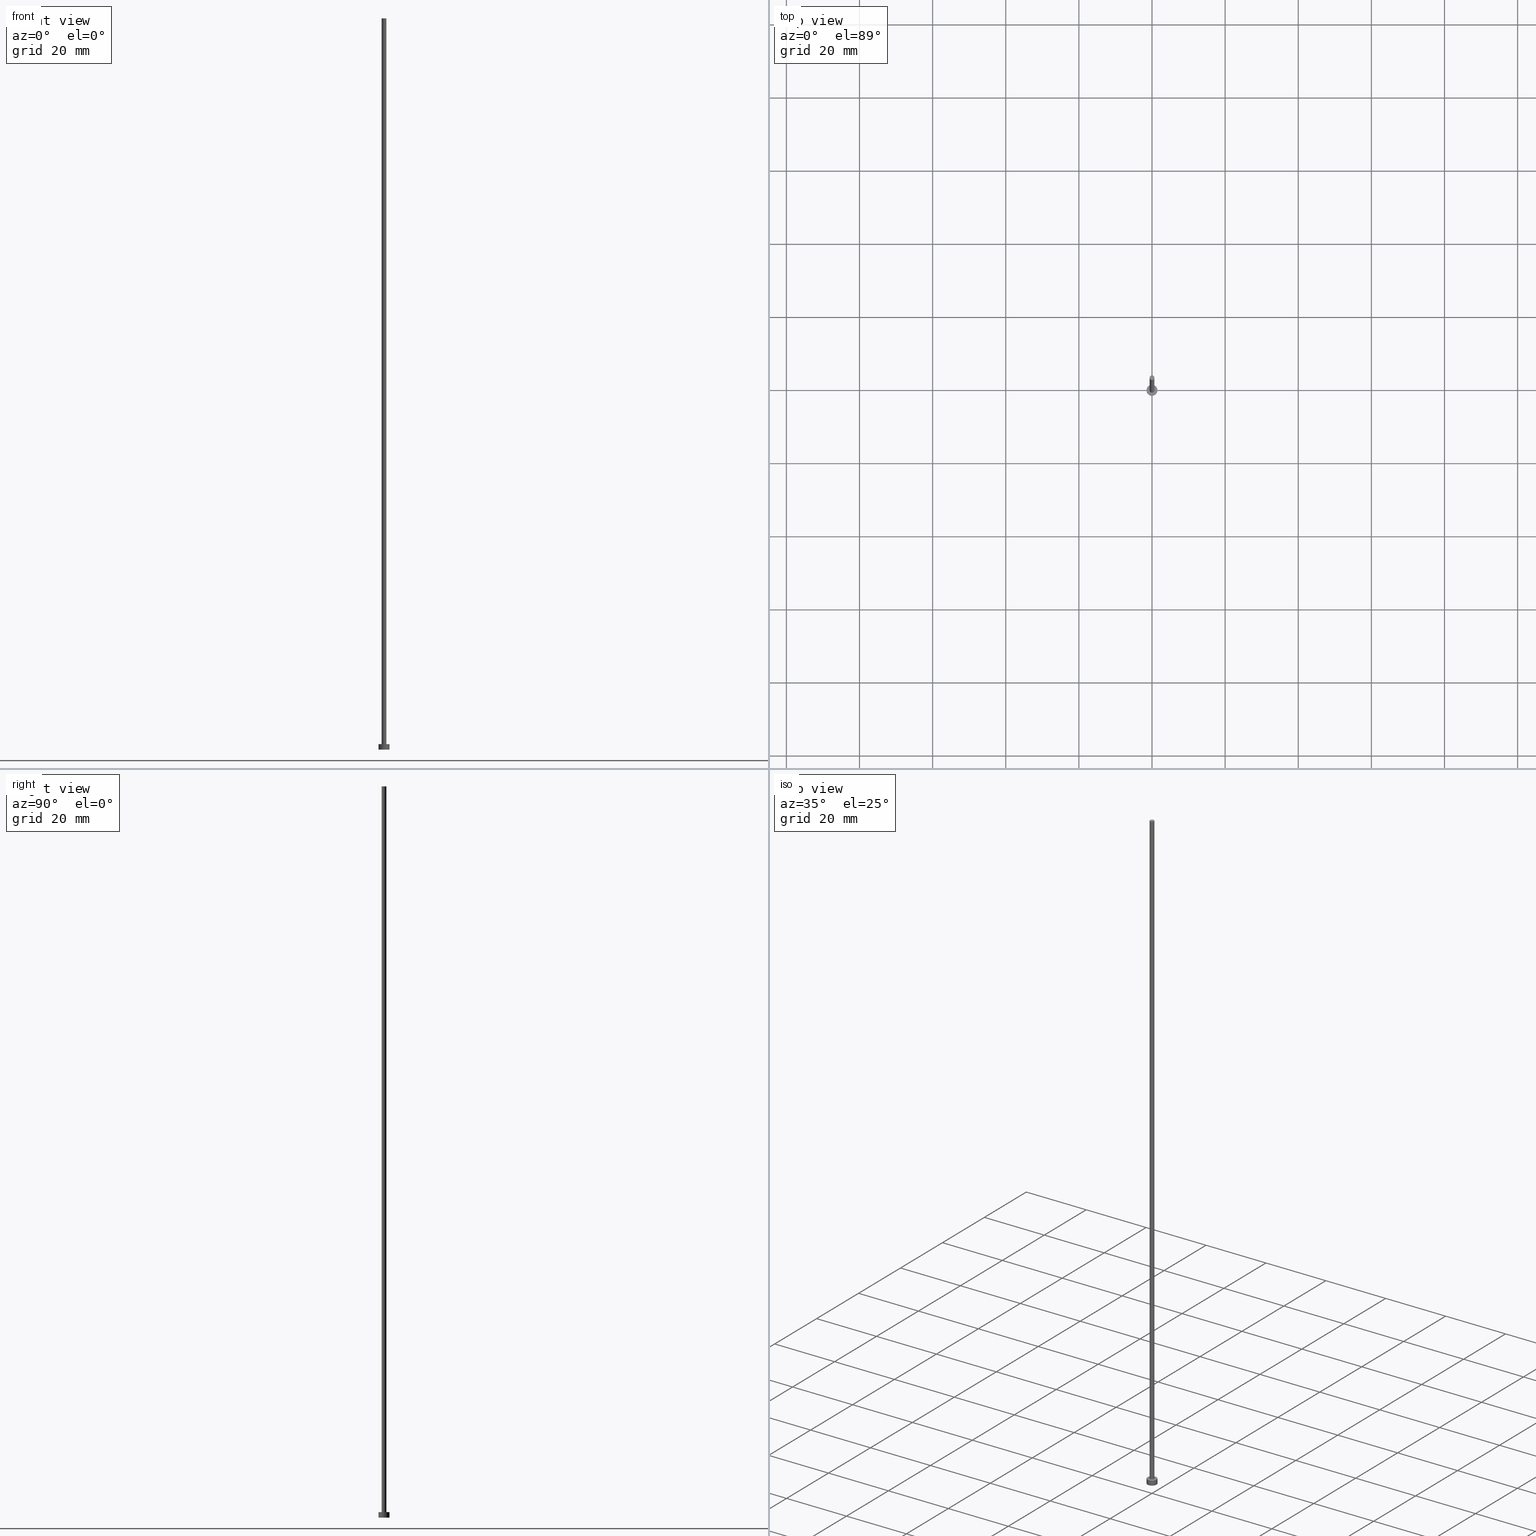
[diagram: canonical four-view strip — front | top / right | iso, engineering-drawing reading convention]
A machine part, canonical four-view strip (front | top / right | iso — engineering-drawing reading convention). The complete STEP part file that produces these views, byte-faithful:
ISO-10303-21;
HEADER;
FILE_DESCRIPTION (( 'STEP AP203' ),
    '1' );
FILE_NAME ('1990.STEP',
    '2026-02-06T12:33:36',
    ( '' ),
    ( '' ),
    'SwSTEP 2.0',
    'SolidWorks 2019',
    '' );
FILE_SCHEMA (( 'CONFIG_CONTROL_DESIGN' ));
ENDSEC;

DATA;
#1 = CARTESIAN_POINT ( 'NONE',  ( 0.000000000000000000, 0.000000000000000000, 200.0000000000000000 ) ) ;
#2 = DATE_AND_TIME ( #178, #23 ) ;
#3 = AXIS2_PLACEMENT_3D ( 'NONE', #206, #78, #252 ) ;
#4 = CARTESIAN_POINT ( 'NONE',  ( 0.6500000000000000222, 7.960204194457795477E-17, 200.0000000000000000 ) ) ;
#5 = VERTEX_POINT ( 'NONE', #142 ) ;
#6 = EDGE_CURVE ( 'NONE', #91, #46, #242, .T. ) ;
#7 = CALENDAR_DATE ( 2026, 6, 2 ) ;
#8 = DIRECTION ( 'NONE',  ( -1.000000000000000000, 0.000000000000000000, 0.000000000000000000 ) ) ;
#9 = ORIENTED_EDGE ( 'NONE', *, *, #187, .F. ) ;
#10 = ORIENTED_EDGE ( 'NONE', *, *, #118, .F. ) ;
#11 = ADVANCED_FACE ( 'NONE', ( #128 ), #87, .T. ) ;
#12 = MANIFOLD_SOLID_BREP ( 'P�idat vysunut�m3', #139 ) ;
#13 = CYLINDRICAL_SURFACE ( 'NONE', #103, 1.500000000000000222 ) ;
#14 = CARTESIAN_POINT ( 'NONE',  ( -1.500000000000000222, 0.000000000000000000, 1.500000000000000000 ) ) ;
#15 = APPROVAL_STATUS ( 'not_yet_approved' ) ;
#16 = FACE_OUTER_BOUND ( 'NONE', #164, .T. ) ;
#17 = EDGE_LOOP ( 'NONE', ( #247, #224, #220, #204 ) ) ;
#18 = DATE_AND_TIME ( #234, #215 ) ;
#19 = CIRCLE ( 'NONE', #232, 0.6500000000000000222 ) ;
#20 = DIRECTION ( 'NONE',  ( 1.000000000000000000, 0.000000000000000000, 0.000000000000000000 ) ) ;
#21 = DIRECTION ( 'NONE',  ( 1.000000000000000000, 0.000000000000000000, 0.000000000000000000 ) ) ;
#22 = DATE_TIME_ROLE ( 'classification_date' ) ;
#23 = LOCAL_TIME ( 13, 33, 36.00000000000000000, #175 ) ;
#24 =( LENGTH_UNIT ( ) NAMED_UNIT ( * ) SI_UNIT ( .MILLI., .METRE. ) );
#25 = CARTESIAN_POINT ( 'NONE',  ( 0.000000000000000000, 0.000000000000000000, 200.0000000000000000 ) ) ;
#26 = CARTESIAN_POINT ( 'NONE',  ( -0.6500000000000000222, 0.000000000000000000, 1.500000000000000000 ) ) ;
#27 = VERTEX_POINT ( 'NONE', #161 ) ;
#28 = APPLICATION_CONTEXT ( 'configuration controlled 3d designs of mechanical parts and assemblies' ) ;
#29 = EDGE_LOOP ( 'NONE', ( #108, #157 ) ) ;
#30 = APPROVAL ( #15, 'NEUR�EN�' ) ;
#31 = CIRCLE ( 'NONE', #171, 1.500000000000000222 ) ;
#32 =( GEOMETRIC_REPRESENTATION_CONTEXT ( 3 ) GLOBAL_UNCERTAINTY_ASSIGNED_CONTEXT ( ( #96 ) ) GLOBAL_UNIT_ASSIGNED_CONTEXT ( ( #24, #240, #219 ) ) REPRESENTATION_CONTEXT ( 'NONE', 'WORKASPACE' ) );
#33 = PRODUCT ( '1990', '1990', '', ( #127 ) ) ;
#34 = DIRECTION ( 'NONE',  ( 0.000000000000000000, 0.000000000000000000, 1.000000000000000000 ) ) ;
#35 = AXIS2_PLACEMENT_3D ( 'NONE', #1, #230, #229 ) ;
#36 = APPROVAL_PERSON_ORGANIZATION ( #160, #57, #140 ) ;
#37 = CYLINDRICAL_SURFACE ( 'NONE', #177, 1.500000000000000222 ) ;
#38 = PERSON_AND_ORGANIZATION ( #192, #251 ) ;
#39 = COORDINATED_UNIVERSAL_TIME_OFFSET ( 1, 0, .AHEAD. ) ;
#40 = EDGE_CURVE ( 'NONE', #222, #5, #203, .T. ) ;
#41 = CARTESIAN_POINT ( 'NONE',  ( 1.500000000000000222, 1.836970198721030181E-16, 1.500000000000000000 ) ) ;
#42 = DIRECTION ( 'NONE',  ( 0.000000000000000000, 0.000000000000000000, 1.000000000000000000 ) ) ;
#43 = DIRECTION ( 'NONE',  ( 0.000000000000000000, 0.000000000000000000, 1.000000000000000000 ) ) ;
#44 = CIRCLE ( 'NONE', #143, 1.500000000000000222 ) ;
#45 = PLANE ( 'NONE',  #123 ) ;
#46 = VERTEX_POINT ( 'NONE', #212 ) ;
#47 = DIRECTION ( 'NONE',  ( 1.000000000000000000, 0.000000000000000000, 0.000000000000000000 ) ) ;
#48 = EDGE_LOOP ( 'NONE', ( #129, #66, #70, #246 ) ) ;
#49 = ADVANCED_BREP_SHAPE_REPRESENTATION ( '1990', ( #12, #249 ), #32 ) ;
#50 = ADVANCED_FACE ( 'NONE', ( #101, #237 ), #172, .T. ) ;
#51 = VERTEX_POINT ( 'NONE', #41 ) ;
#52 = ORIENTED_EDGE ( 'NONE', *, *, #152, .T. ) ;
#53 = EDGE_CURVE ( 'NONE', #222, #27, #213, .T. ) ;
#54 = DIRECTION ( 'NONE',  ( -0.000000000000000000, -0.000000000000000000, -1.000000000000000000 ) ) ;
#55 = AXIS2_PLACEMENT_3D ( 'NONE', #25, #107, #8 ) ;
#56 = CALENDAR_DATE ( 2026, 6, 2 ) ;
#57 = APPROVAL ( #197, 'NEUR�EN�' ) ;
#58 = CARTESIAN_POINT ( 'NONE',  ( 1.500000000000000222, 1.836970198721030181E-16, 1.500000000000000000 ) ) ;
#59 = DIRECTION ( 'NONE',  ( -0.000000000000000000, -0.000000000000000000, -1.000000000000000000 ) ) ;
#60 = SHAPE_DEFINITION_REPRESENTATION ( #167, #49 ) ;
#61 = DIRECTION ( 'NONE',  ( 0.000000000000000000, 0.000000000000000000, 1.000000000000000000 ) ) ;
#62 = CIRCLE ( 'NONE', #254, 0.6500000000000000222 ) ;
#63 = CC_DESIGN_SECURITY_CLASSIFICATION ( #89, ( #156 ) ) ;
#64 = LINE ( 'NONE', #65, #93 ) ;
#65 = CARTESIAN_POINT ( 'NONE',  ( -0.6500000000000000222, 0.000000000000000000, 200.0000000000000000 ) ) ;
#66 = ORIENTED_EDGE ( 'NONE', *, *, #40, .T. ) ;
#67 = VECTOR ( 'NONE', #59, 1000.000000000000000 ) ;
#68 = CARTESIAN_POINT ( 'NONE',  ( 0.000000000000000000, 0.000000000000000000, 0.000000000000000000 ) ) ;
#69 = ORIENTED_EDGE ( 'NONE', *, *, #6, .F. ) ;
#70 = ORIENTED_EDGE ( 'NONE', *, *, #218, .T. ) ;
#71 = ORIENTED_EDGE ( 'NONE', *, *, #187, .T. ) ;
#72 = LOCAL_TIME ( 13, 33, 36.00000000000000000, #194 ) ;
#73 = CARTESIAN_POINT ( 'NONE',  ( 0.000000000000000000, 0.000000000000000000, 1.500000000000000000 ) ) ;
#74 = CC_DESIGN_DATE_AND_TIME_ASSIGNMENT ( #18, #81, ( #185 ) ) ;
#75 = FACE_OUTER_BOUND ( 'NONE', #48, .T. ) ;
#76 = APPROVAL_PERSON_ORGANIZATION ( #38, #30, #77 ) ;
#77 = APPROVAL_ROLE ( '' ) ;
#78 = DIRECTION ( 'NONE',  ( 0.000000000000000000, 0.000000000000000000, 1.000000000000000000 ) ) ;
#79 = DIRECTION ( 'NONE',  ( -1.000000000000000000, 0.000000000000000000, 0.000000000000000000 ) ) ;
#80 = DATE_AND_TIME ( #7, #228 ) ;
#81 = DATE_TIME_ROLE ( 'creation_date' ) ;
#82 = EDGE_CURVE ( 'NONE', #27, #222, #62, .T. ) ;
#83 = DIRECTION ( 'NONE',  ( 0.000000000000000000, 0.000000000000000000, 1.000000000000000000 ) ) ;
#84 = PERSON_AND_ORGANIZATION ( #192, #251 ) ;
#85 = CC_DESIGN_DATE_AND_TIME_ASSIGNMENT ( #186, #22, ( #89 ) ) ;
#86 = PERSON_AND_ORGANIZATION ( #192, #251 ) ;
#87 = CYLINDRICAL_SURFACE ( 'NONE', #55, 0.6500000000000000222 ) ;
#88 = ADVANCED_FACE ( 'NONE', ( #75 ), #149, .T. ) ;
#89 = SECURITY_CLASSIFICATION ( '', '', #209 ) ;
#90 = ORIENTED_EDGE ( 'NONE', *, *, #147, .F. ) ;
#91 = VERTEX_POINT ( 'NONE', #14 ) ;
#92 = APPLICATION_CONTEXT ( 'configuration controlled 3d designs of mechanical parts and assemblies' ) ;
#93 = VECTOR ( 'NONE', #120, 1000.000000000000000 ) ;
#94 = DIRECTION ( 'NONE',  ( 0.000000000000000000, 0.000000000000000000, 1.000000000000000000 ) ) ;
#95 = ADVANCED_FACE ( 'NONE', ( #16 ), #37, .T. ) ;
#96 = UNCERTAINTY_MEASURE_WITH_UNIT (LENGTH_MEASURE( 1.000000000000000082E-05 ), #24, 'distance_accuracy_value', 'NONE');
#97 = CARTESIAN_POINT ( 'NONE',  ( 0.000000000000000000, 0.000000000000000000, 1.500000000000000000 ) ) ;
#98 = AXIS2_PLACEMENT_3D ( 'NONE', #112, #94, #184 ) ;
#99 = PERSON_AND_ORGANIZATION_ROLE ( 'design_supplier' ) ;
#100 = FACE_OUTER_BOUND ( 'NONE', #146, .T. ) ;
#101 = FACE_BOUND ( 'NONE', #29, .T. ) ;
#102 = DATE_AND_TIME ( #56, #226 ) ;
#103 = AXIS2_PLACEMENT_3D ( 'NONE', #73, #54, #233 ) ;
#104 = CARTESIAN_POINT ( 'NONE',  ( 0.000000000000000000, 0.000000000000000000, 1.500000000000000000 ) ) ;
#105 = CC_DESIGN_PERSON_AND_ORGANIZATION_ASSIGNMENT ( #136, #99, ( #156 ) ) ;
#106 = EDGE_CURVE ( 'NONE', #159, #46, #245, .T. ) ;
#107 = DIRECTION ( 'NONE',  ( -0.000000000000000000, -0.000000000000000000, -1.000000000000000000 ) ) ;
#108 = ORIENTED_EDGE ( 'NONE', *, *, #243, .F. ) ;
#109 = EDGE_LOOP ( 'NONE', ( #71, #205 ) ) ;
#110 = CARTESIAN_POINT ( 'NONE',  ( -1.500000000000000222, 0.000000000000000000, 1.500000000000000000 ) ) ;
#111 = CIRCLE ( 'NONE', #132, 1.500000000000000222 ) ;
#112 = CARTESIAN_POINT ( 'NONE',  ( 0.000000000000000000, 0.000000000000000000, 1.500000000000000000 ) ) ;
#113 = VECTOR ( 'NONE', #201, 1000.000000000000000 ) ;
#114 = CC_DESIGN_APPROVAL ( #30, ( #89 ) ) ;
#115 = APPROVAL_DATE_TIME ( #80, #57 ) ;
#116 = FACE_OUTER_BOUND ( 'NONE', #196, .T. ) ;
#117 = APPROVAL_DATE_TIME ( #102, #148 ) ;
#118 = EDGE_CURVE ( 'NONE', #51, #91, #44, .T. ) ;
#119 = CALENDAR_DATE ( 2026, 6, 2 ) ;
#120 = DIRECTION ( 'NONE',  ( -0.000000000000000000, -0.000000000000000000, -1.000000000000000000 ) ) ;
#121 = CC_DESIGN_PERSON_AND_ORGANIZATION_ASSIGNMENT ( #84, #211, ( #185 ) ) ;
#122 = PERSON_AND_ORGANIZATION_ROLE ( 'design_owner' ) ;
#123 = AXIS2_PLACEMENT_3D ( 'NONE', #125, #43, #199 ) ;
#124 = CC_DESIGN_APPROVAL ( #57, ( #185 ) ) ;
#125 = CARTESIAN_POINT ( 'NONE',  ( 0.000000000000000000, 0.000000000000000000, 0.000000000000000000 ) ) ;
#126 = ORIENTED_EDGE ( 'NONE', *, *, #53, .T. ) ;
#127 = MECHANICAL_CONTEXT ( 'NONE', #92, 'mechanical' ) ;
#128 = FACE_OUTER_BOUND ( 'NONE', #17, .T. ) ;
#129 = ORIENTED_EDGE ( 'NONE', *, *, #53, .F. ) ;
#130 = ORIENTED_EDGE ( 'NONE', *, *, #82, .T. ) ;
#131 = CC_DESIGN_PERSON_AND_ORGANIZATION_ASSIGNMENT ( #141, #189, ( #89 ) ) ;
#132 = AXIS2_PLACEMENT_3D ( 'NONE', #135, #210, #154 ) ;
#133 = DIRECTION ( 'NONE',  ( 0.000000000000000000, 0.000000000000000000, 1.000000000000000000 ) ) ;
#134 = VECTOR ( 'NONE', #174, 1000.000000000000000 ) ;
#135 = CARTESIAN_POINT ( 'NONE',  ( 0.000000000000000000, 0.000000000000000000, 1.500000000000000000 ) ) ;
#136 = PERSON_AND_ORGANIZATION ( #192, #251 ) ;
#137 = CARTESIAN_POINT ( 'NONE',  ( 1.500000000000000222, 1.836970198721030181E-16, 0.000000000000000000 ) ) ;
#138 = PLANE ( 'NONE',  #168 ) ;
#139 = CLOSED_SHELL ( 'NONE', ( #88, #95, #163, #50, #250, #11, #216 ) ) ;
#140 = APPROVAL_ROLE ( '' ) ;
#141 = PERSON_AND_ORGANIZATION ( #192, #251 ) ;
#142 = CARTESIAN_POINT ( 'NONE',  ( 0.6500000000000000222, 7.960204194457795477E-17, 1.500000000000000000 ) ) ;
#143 = AXIS2_PLACEMENT_3D ( 'NONE', #97, #34, #21 ) ;
#144 = DIRECTION ( 'NONE',  ( 0.000000000000000000, 0.000000000000000000, 1.000000000000000000 ) ) ;
#145 = ORIENTED_EDGE ( 'NONE', *, *, #106, .T. ) ;
#146 = EDGE_LOOP ( 'NONE', ( #130, #126 ) ) ;
#147 = EDGE_CURVE ( 'NONE', #46, #159, #31, .T. ) ;
#148 = APPROVAL ( #155, 'NEUR�EN�' ) ;
#149 = CYLINDRICAL_SURFACE ( 'NONE', #35, 0.6500000000000000222 ) ;
#150 = APPROVAL_ROLE ( '' ) ;
#151 = LINE ( 'NONE', #58, #67 ) ;
#152 = EDGE_CURVE ( 'NONE', #51, #159, #151, .T. ) ;
#153 = PERSON_AND_ORGANIZATION ( #192, #251 ) ;
#154 = DIRECTION ( 'NONE',  ( 1.000000000000000000, 0.000000000000000000, 0.000000000000000000 ) ) ;
#155 = APPROVAL_STATUS ( 'not_yet_approved' ) ;
#156 = PRODUCT_DEFINITION_FORMATION_WITH_SPECIFIED_SOURCE ( 'LIBOVOLN�', '', #33, .NOT_KNOWN. ) ;
#157 = ORIENTED_EDGE ( 'NONE', *, *, #218, .F. ) ;
#158 = APPLICATION_PROTOCOL_DEFINITION ( 'international standard', 'config_control_design', 1994, #92 ) ;
#159 = VERTEX_POINT ( 'NONE', #137 ) ;
#160 = PERSON_AND_ORGANIZATION ( #192, #251 ) ;
#161 = CARTESIAN_POINT ( 'NONE',  ( -0.6500000000000000222, 0.000000000000000000, 200.0000000000000000 ) ) ;
#162 = CARTESIAN_POINT ( 'NONE',  ( 0.6500000000000000222, 7.960204194457795477E-17, 200.0000000000000000 ) ) ;
#163 = ADVANCED_FACE ( 'NONE', ( #116 ), #13, .T. ) ;
#164 = EDGE_LOOP ( 'NONE', ( #10, #52, #145, #69 ) ) ;
#165 = CC_DESIGN_PERSON_AND_ORGANIZATION_ASSIGNMENT ( #86, #122, ( #33 ) ) ;
#166 = CIRCLE ( 'NONE', #198, 0.6500000000000000222 ) ;
#167 = PRODUCT_DEFINITION_SHAPE ( 'NONE', 'NONE',  #185 ) ;
#168 = AXIS2_PLACEMENT_3D ( 'NONE', #214, #42, #202 ) ;
#169 = CARTESIAN_POINT ( 'NONE',  ( 0.000000000000000000, 0.000000000000000000, 1.500000000000000000 ) ) ;
#170 = CC_DESIGN_PERSON_AND_ORGANIZATION_ASSIGNMENT ( #153, #231, ( #156 ) ) ;
#171 = AXIS2_PLACEMENT_3D ( 'NONE', #208, #61, #20 ) ;
#172 = PLANE ( 'NONE',  #98 ) ;
#173 = DIRECTION ( 'NONE',  ( 0.000000000000000000, 0.000000000000000000, 1.000000000000000000 ) ) ;
#174 = DIRECTION ( 'NONE',  ( -0.000000000000000000, -0.000000000000000000, -1.000000000000000000 ) ) ;
#175 = COORDINATED_UNIVERSAL_TIME_OFFSET ( 1, 0, .AHEAD. ) ;
#176 = DIRECTION ( 'NONE',  ( 1.000000000000000000, 0.000000000000000000, 0.000000000000000000 ) ) ;
#177 = AXIS2_PLACEMENT_3D ( 'NONE', #169, #255, #79 ) ;
#178 = CALENDAR_DATE ( 2026, 6, 2 ) ;
#179 = COORDINATED_UNIVERSAL_TIME_OFFSET ( 1, 0, .AHEAD. ) ;
#180 = EDGE_LOOP ( 'NONE', ( #90, #236 ) ) ;
#181 = ORIENTED_EDGE ( 'NONE', *, *, #147, .T. ) ;
#182 = ORIENTED_EDGE ( 'NONE', *, *, #6, .T. ) ;
#183 = CC_DESIGN_APPROVAL ( #148, ( #156 ) ) ;
#184 = DIRECTION ( 'NONE',  ( 1.000000000000000000, 0.000000000000000000, -0.000000000000000000 ) ) ;
#185 = PRODUCT_DEFINITION ( 'NEZN�M�', '', #156, #223 ) ;
#186 = DATE_AND_TIME ( #119, #72 ) ;
#187 = EDGE_CURVE ( 'NONE', #91, #51, #111, .T. ) ;
#188 = DIRECTION ( 'NONE',  ( 1.000000000000000000, 0.000000000000000000, 0.000000000000000000 ) ) ;
#189 = PERSON_AND_ORGANIZATION_ROLE ( 'classification_officer' ) ;
#190 = CARTESIAN_POINT ( 'NONE',  ( 0.000000000000000000, 0.000000000000000000, 200.0000000000000000 ) ) ;
#191 = APPROVAL_PERSON_ORGANIZATION ( #253, #148, #150 ) ;
#192 = PERSON ( 'NEUR�EN�', 'NEUR�EN�', 'NEUR�EN�', ('NEUR�EN�'), ('NEUR�EN�'), ('NEUR�EN�') ) ;
#193 = DIRECTION ( 'NONE',  ( 1.000000000000000000, 0.000000000000000000, 0.000000000000000000 ) ) ;
#194 = COORDINATED_UNIVERSAL_TIME_OFFSET ( 1, 0, .AHEAD. ) ;
#195 = FACE_OUTER_BOUND ( 'NONE', #180, .T. ) ;
#196 = EDGE_LOOP ( 'NONE', ( #248, #9, #182, #181 ) ) ;
#197 = APPROVAL_STATUS ( 'not_yet_approved' ) ;
#198 = AXIS2_PLACEMENT_3D ( 'NONE', #104, #144, #244 ) ;
#199 = DIRECTION ( 'NONE',  ( 1.000000000000000000, 0.000000000000000000, -0.000000000000000000 ) ) ;
#200 = PRODUCT_RELATED_PRODUCT_CATEGORY ( 'detail', '', ( #33 ) ) ;
#201 = DIRECTION ( 'NONE',  ( -0.000000000000000000, -0.000000000000000000, -1.000000000000000000 ) ) ;
#202 = DIRECTION ( 'NONE',  ( 1.000000000000000000, 0.000000000000000000, -0.000000000000000000 ) ) ;
#203 = LINE ( 'NONE', #162, #134 ) ;
#204 = ORIENTED_EDGE ( 'NONE', *, *, #243, .T. ) ;
#205 = ORIENTED_EDGE ( 'NONE', *, *, #118, .T. ) ;
#206 = CARTESIAN_POINT ( 'NONE',  ( 0.000000000000000000, 0.000000000000000000, 0.000000000000000000 ) ) ;
#207 = AXIS2_PLACEMENT_3D ( 'NONE', #190, #133, #193 ) ;
#208 = CARTESIAN_POINT ( 'NONE',  ( 0.000000000000000000, 0.000000000000000000, 0.000000000000000000 ) ) ;
#209 = SECURITY_CLASSIFICATION_LEVEL ( 'unclassified' ) ;
#210 = DIRECTION ( 'NONE',  ( 0.000000000000000000, 0.000000000000000000, 1.000000000000000000 ) ) ;
#211 = PERSON_AND_ORGANIZATION_ROLE ( 'creator' ) ;
#212 = CARTESIAN_POINT ( 'NONE',  ( -1.500000000000000222, 0.000000000000000000, 0.000000000000000000 ) ) ;
#213 = CIRCLE ( 'NONE', #207, 0.6500000000000000222 ) ;
#214 = CARTESIAN_POINT ( 'NONE',  ( 0.000000000000000000, 0.000000000000000000, 200.0000000000000000 ) ) ;
#215 = LOCAL_TIME ( 13, 33, 36.00000000000000000, #217 ) ;
#216 = ADVANCED_FACE ( 'NONE', ( #100 ), #138, .T. ) ;
#217 = COORDINATED_UNIVERSAL_TIME_OFFSET ( 1, 0, .AHEAD. ) ;
#218 = EDGE_CURVE ( 'NONE', #5, #225, #166, .T. ) ;
#219 =( NAMED_UNIT ( * ) SI_UNIT ( $, .STERADIAN. ) SOLID_ANGLE_UNIT ( ) );
#220 = ORIENTED_EDGE ( 'NONE', *, *, #227, .T. ) ;
#221 = DIRECTION ( 'NONE',  ( 0.000000000000000000, 0.000000000000000000, 1.000000000000000000 ) ) ;
#222 = VERTEX_POINT ( 'NONE', #4 ) ;
#223 = DESIGN_CONTEXT ( 'detailed design', #28, 'design' ) ;
#224 = ORIENTED_EDGE ( 'NONE', *, *, #82, .F. ) ;
#225 = VERTEX_POINT ( 'NONE', #26 ) ;
#226 = LOCAL_TIME ( 13, 33, 36.00000000000000000, #39 ) ;
#227 = EDGE_CURVE ( 'NONE', #27, #225, #64, .T. ) ;
#228 = LOCAL_TIME ( 13, 33, 36.00000000000000000, #179 ) ;
#229 = DIRECTION ( 'NONE',  ( -1.000000000000000000, 0.000000000000000000, 0.000000000000000000 ) ) ;
#230 = DIRECTION ( 'NONE',  ( -0.000000000000000000, -0.000000000000000000, -1.000000000000000000 ) ) ;
#231 = PERSON_AND_ORGANIZATION_ROLE ( 'creator' ) ;
#232 = AXIS2_PLACEMENT_3D ( 'NONE', #241, #83, #176 ) ;
#233 = DIRECTION ( 'NONE',  ( -1.000000000000000000, 0.000000000000000000, 0.000000000000000000 ) ) ;
#234 = CALENDAR_DATE ( 2026, 6, 2 ) ;
#235 = CARTESIAN_POINT ( 'NONE',  ( 0.000000000000000000, 0.000000000000000000, 200.0000000000000000 ) ) ;
#236 = ORIENTED_EDGE ( 'NONE', *, *, #106, .F. ) ;
#237 = FACE_OUTER_BOUND ( 'NONE', #109, .T. ) ;
#238 = APPLICATION_PROTOCOL_DEFINITION ( 'international standard', 'config_control_design', 1994, #28 ) ;
#239 = APPROVAL_DATE_TIME ( #2, #30 ) ;
#240 =( NAMED_UNIT ( * ) PLANE_ANGLE_UNIT ( ) SI_UNIT ( $, .RADIAN. ) );
#241 = CARTESIAN_POINT ( 'NONE',  ( 0.000000000000000000, 0.000000000000000000, 1.500000000000000000 ) ) ;
#242 = LINE ( 'NONE', #110, #113 ) ;
#243 = EDGE_CURVE ( 'NONE', #225, #5, #19, .T. ) ;
#244 = DIRECTION ( 'NONE',  ( 1.000000000000000000, 0.000000000000000000, 0.000000000000000000 ) ) ;
#245 = CIRCLE ( 'NONE', #3, 1.500000000000000222 ) ;
#246 = ORIENTED_EDGE ( 'NONE', *, *, #227, .F. ) ;
#247 = ORIENTED_EDGE ( 'NONE', *, *, #40, .F. ) ;
#248 = ORIENTED_EDGE ( 'NONE', *, *, #152, .F. ) ;
#249 = AXIS2_PLACEMENT_3D ( 'NONE', #68, #221, #47 ) ;
#250 = ADVANCED_FACE ( 'NONE', ( #195 ), #45, .F. ) ;
#251 = ORGANIZATION ( 'NEUR�EN�', 'NEUR�EN�', '' ) ;
#252 = DIRECTION ( 'NONE',  ( 1.000000000000000000, 0.000000000000000000, 0.000000000000000000 ) ) ;
#253 = PERSON_AND_ORGANIZATION ( #192, #251 ) ;
#254 = AXIS2_PLACEMENT_3D ( 'NONE', #235, #173, #188 ) ;
#255 = DIRECTION ( 'NONE',  ( -0.000000000000000000, -0.000000000000000000, -1.000000000000000000 ) ) ;
ENDSEC;
END-ISO-10303-21;
